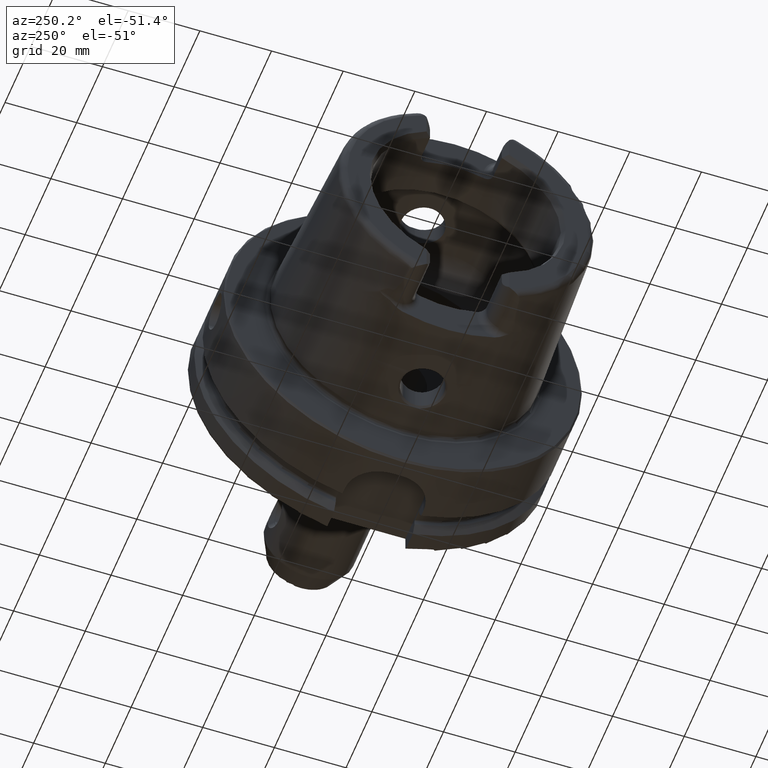
[diagram: clean part render]
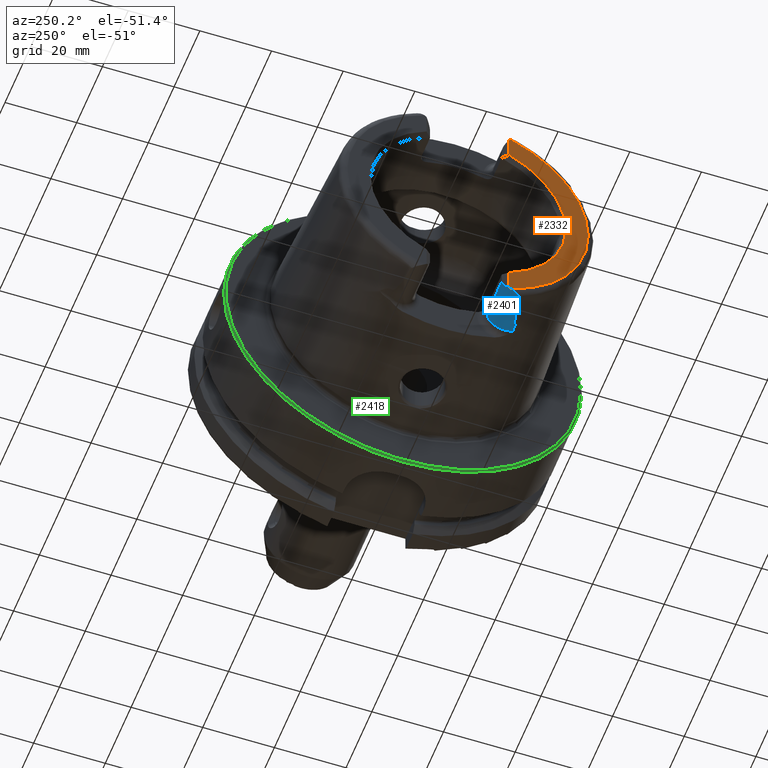
[diagram: same view with three faces highlighted in distinct colors, each labeled with its STEP entity id]
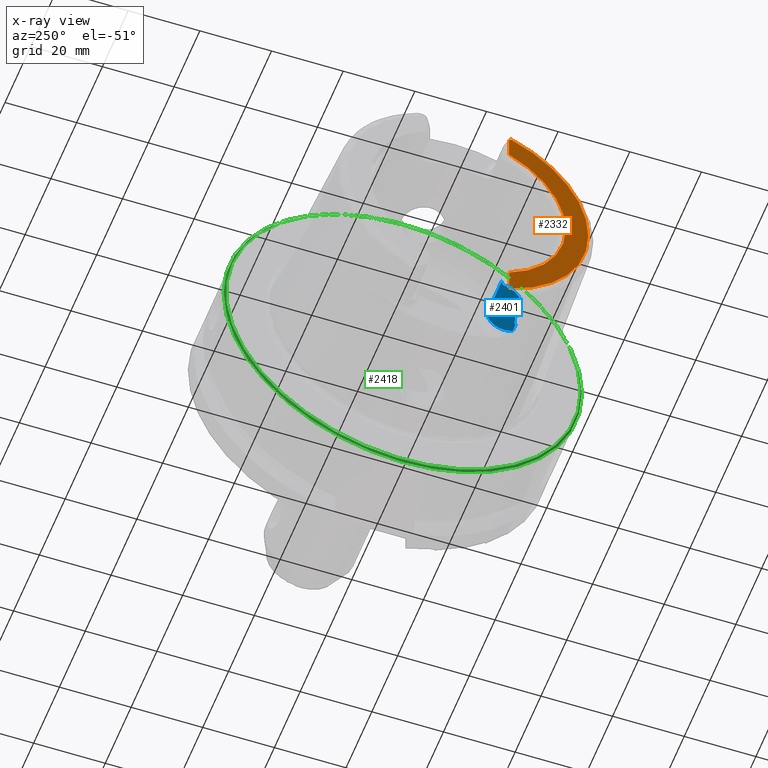
[diagram: x-ray of the same camera — body ghosted, the three highlighted faces saturated]
A machine part, auxiliary view with three faces highlighted in distinct colors.
The next image is the same camera in x-ray (body ghosted, the three faces saturated) — at least one of them is partly hidden behind the body in this view.
Their STEP definitions:

[orange] entity #2332 — the highlighted planar face has unit normal (-1, 0, 0).
#214=LINE('',#4059,#333);
#216=LINE('',#4078,#335);
#333=VECTOR('',#2960,10.);
#335=VECTOR('',#2982,10.);
#504=FACE_OUTER_BOUND('',#649,.T.);
#649=EDGE_LOOP('',(#1723,#1724,#1725,#1726,#1727,#1728));
#802=CIRCLE('',#2542,27.3660254037844);
#805=CIRCLE('',#2547,4.88);
#806=CIRCLE('',#2548,33.6001839277785);
#807=CIRCLE('',#2549,4.88);
#989=VERTEX_POINT('',#4056);
#990=VERTEX_POINT('',#4058);
#992=VERTEX_POINT('',#4064);
#995=VERTEX_POINT('',#4072);
#996=VERTEX_POINT('',#4074);
#997=VERTEX_POINT('',#4076);
#1261=EDGE_CURVE('',#989,#990,#214,.T.);
#1264=EDGE_CURVE('',#990,#992,#802,.T.);
#1268=EDGE_CURVE('',#989,#995,#805,.T.);
#1269=EDGE_CURVE('',#996,#995,#806,.T.);
#1270=EDGE_CURVE('',#996,#997,#807,.T.);
#1271=EDGE_CURVE('',#992,#997,#216,.T.);
#1723=ORIENTED_EDGE('',*,*,#1261,.F.);
#1724=ORIENTED_EDGE('',*,*,#1268,.T.);
#1725=ORIENTED_EDGE('',*,*,#1269,.F.);
#1726=ORIENTED_EDGE('',*,*,#1270,.T.);
#1727=ORIENTED_EDGE('',*,*,#1271,.F.);
#1728=ORIENTED_EDGE('',*,*,#1264,.F.);
#2264=PLANE('',#2546);
#2332=ADVANCED_FACE('',(#504),#2264,.T.);
#2542=AXIS2_PLACEMENT_3D('',#4065,#2966,#2967);
#2546=AXIS2_PLACEMENT_3D('',#4071,#2974,#2975);
#2547=AXIS2_PLACEMENT_3D('',#4073,#2976,#2977);
#2548=AXIS2_PLACEMENT_3D('',#4075,#2978,#2979);
#2549=AXIS2_PLACEMENT_3D('',#4077,#2980,#2981);
#2960=DIRECTION('',(0.,0.,1.));
#2966=DIRECTION('center_axis',(-1.,0.,0.));
#2967=DIRECTION('ref_axis',(0.,-1.,0.));
#2974=DIRECTION('center_axis',(-1.,0.,0.));
#2975=DIRECTION('ref_axis',(0.,0.,1.));
#2976=DIRECTION('center_axis',(-1.,0.,0.));
#2977=DIRECTION('ref_axis',(0.,-1.,0.));
#2978=DIRECTION('center_axis',(1.,0.,0.));
#2979=DIRECTION('ref_axis',(0.,0.,-1.));
#2980=DIRECTION('center_axis',(-1.,0.,0.));
#2981=DIRECTION('ref_axis',(0.,0.477884921181369,-0.878422450821629));
#2982=DIRECTION('',(0.,0.,1.));
#4056=CARTESIAN_POINT('',(-50.,-11.51,-30.8899431813596));
#4058=CARTESIAN_POINT('',(-50.,-11.51,-24.8277918148307));
#4059=CARTESIAN_POINT('',(-50.,-11.51,-13.685));
#4064=CARTESIAN_POINT('',(-50.,-11.51,24.8277918148307));
#4065=CARTESIAN_POINT('Origin',(-50.,0.,0.));
#4071=CARTESIAN_POINT('Origin',(-50.,33.6001839277785,0.));
#4072=CARTESIAN_POINT('',(-50.,-12.0743049948301,-31.355757348091));
#4073=CARTESIAN_POINT('Origin',(-50.,-14.89,-27.37));
#4074=CARTESIAN_POINT('',(-50.,-12.0743049948301,31.355757348091));
#4075=CARTESIAN_POINT('Origin',(-50.,0.,0.));
#4076=CARTESIAN_POINT('',(-50.,-11.51,30.8899431813596));
#4077=CARTESIAN_POINT('Origin',(-50.,-14.89,27.37));
#4078=CARTESIAN_POINT('',(-50.,-11.51,9.));

[blue] entity #2401 — the highlighted cylindrical surface (edge-blend (fillet) strip) has radius 4.88 mm, axis along (-1, 0, 0).
#90=B_SPLINE_CURVE_WITH_KNOTS('',3,(#4314,#4315,#4316,#4317,#4318,#4319,
#4320,#4321,#4322,#4323,#4324,#4325,#4326,#4327,#4328,#4329,#4330,#4331),
 .UNSPECIFIED.,.F.,.F.,(4,2,2,2,2,2,2,2,4),(0.941531918456969,1.22402920907858,
1.42803407725834,1.6320389454381,1.70619252829239,1.78034611114668,1.80087123762391,
1.81113380086252,1.82139636410113),.UNSPECIFIED.);
#134=B_SPLINE_CURVE_WITH_KNOTS('',3,(#5318,#5319,#5320,#5321,#5322,#5323,
#5324,#5325,#5326,#5327,#5328,#5329),.UNSPECIFIED.,.F.,.F.,(4,2,2,2,2,4),
(-0.330531435638092,-0.267908000768824,-0.159978118105095,-0.0786368985358016,
-0.0319888850382436,0.),.UNSPECIFIED.);
#170=CYLINDRICAL_SURFACE('',#2686,4.88);
#284=LINE('',#5295,#403);
#286=LINE('',#5334,#405);
#403=VECTOR('',#3294,10.);
#405=VECTOR('',#3326,10.);
#461=ELLIPSE('',#2539,6.90136218438071,4.88);
#573=FACE_OUTER_BOUND('',#723,.T.);
#723=EDGE_LOOP('',(#2120,#2121,#2122,#2123,#2124,#2125,#2126,#2127));
#805=CIRCLE('',#2547,4.88);
#862=CIRCLE('',#2660,4.88);
#866=CIRCLE('',#2666,4.88);
#988=VERTEX_POINT('',#4055);
#989=VERTEX_POINT('',#4056);
#995=VERTEX_POINT('',#4072);
#1017=VERTEX_POINT('',#4311);
#1018=VERTEX_POINT('',#4313);
#1121=VERTEX_POINT('',#5259);
#1122=VERTEX_POINT('',#5261);
#1126=VERTEX_POINT('',#5282);
#1260=EDGE_CURVE('',#988,#989,#461,.T.);
#1268=EDGE_CURVE('',#989,#995,#805,.T.);
#1298=EDGE_CURVE('',#1017,#1018,#90,.T.);
#1454=EDGE_CURVE('',#1121,#1122,#862,.T.);
#1461=EDGE_CURVE('',#1126,#1121,#866,.T.);
#1467=EDGE_CURVE('',#1122,#988,#284,.T.);
#1474=EDGE_CURVE('',#995,#1017,#134,.T.);
#1477=EDGE_CURVE('',#1126,#1018,#286,.T.);
#2120=ORIENTED_EDGE('',*,*,#1260,.F.);
#2121=ORIENTED_EDGE('',*,*,#1467,.F.);
#2122=ORIENTED_EDGE('',*,*,#1454,.F.);
#2123=ORIENTED_EDGE('',*,*,#1461,.F.);
#2124=ORIENTED_EDGE('',*,*,#1477,.T.);
#2125=ORIENTED_EDGE('',*,*,#1298,.F.);
#2126=ORIENTED_EDGE('',*,*,#1474,.F.);
#2127=ORIENTED_EDGE('',*,*,#1268,.F.);
#2401=ADVANCED_FACE('',(#573),#170,.T.);
#2539=AXIS2_PLACEMENT_3D('',#4057,#2958,#2959);
#2547=AXIS2_PLACEMENT_3D('',#4073,#2976,#2977);
#2660=AXIS2_PLACEMENT_3D('',#5262,#3265,#3266);
#2666=AXIS2_PLACEMENT_3D('',#5284,#3279,#3280);
#2686=AXIS2_PLACEMENT_3D('',#5333,#3324,#3325);
#2958=DIRECTION('center_axis',(-0.707106781186546,0.707106781186549,0.));
#2959=DIRECTION('ref_axis',(-0.707106781186549,-0.707106781186546,0.));
#2976=DIRECTION('center_axis',(-1.,0.,0.));
#2977=DIRECTION('ref_axis',(0.,-1.,0.));
#3265=DIRECTION('center_axis',(1.,0.,0.));
#3266=DIRECTION('ref_axis',(0.,0.510937901715381,-0.8596176246394));
#3279=DIRECTION('center_axis',(1.,0.,0.));
#3280=DIRECTION('ref_axis',(0.,-0.477884921181368,-0.878422450821629));
#3294=DIRECTION('',(-1.,0.,0.));
#3324=DIRECTION('center_axis',(-1.,0.,0.));
#3325=DIRECTION('ref_axis',(0.,-1.,0.));
#3326=DIRECTION('',(-1.,0.,0.));
#4055=CARTESIAN_POINT('',(-48.5,-10.01,-27.37));
#4056=CARTESIAN_POINT('',(-50.,-11.51,-30.8899431813596));
#4057=CARTESIAN_POINT('Origin',(-53.38,-14.89,-27.37));
#4072=CARTESIAN_POINT('',(-50.,-12.0743049948301,-31.355757348091));
#4073=CARTESIAN_POINT('Origin',(-50.,-14.89,-27.37));
#4311=CARTESIAN_POINT('',(-48.1000748840304,-15.0787152148571,-32.2463497175327));
#4313=CARTESIAN_POINT('',(-39.3086860506441,-17.2220784153651,-31.6567015600095));
#4314=CARTESIAN_POINT('Ctrl Pts',(-48.1000748840304,-15.0787152148571,-32.2463497175327));
#4315=CARTESIAN_POINT('Ctrl Pts',(-47.0815953489825,-15.2100460868363,-32.2412671998384));
#4316=CARTESIAN_POINT('Ctrl Pts',(-46.0708874643597,-15.3507400024476,-32.2307282620297));
#4317=CARTESIAN_POINT('Ctrl Pts',(-44.3638273319757,-15.6187903492069,-32.19660809961));
#4318=CARTESIAN_POINT('Ctrl Pts',(-43.6583569770469,-15.7387900082285,-32.1775602969968));
#4319=CARTESIAN_POINT('Ctrl Pts',(-42.2774968259687,-16.0065639510366,-32.1225120780024));
#4320=CARTESIAN_POINT('Ctrl Pts',(-41.6015350915672,-16.1516844838416,-32.0879931345296));
#4321=CARTESIAN_POINT('Ctrl Pts',(-40.7121103138057,-16.4018770942044,-32.0104206666339));
#4322=CARTESIAN_POINT('Ctrl Pts',(-40.4538120390228,-16.4807891402054,-31.9844991546726));
#4323=CARTESIAN_POINT('Ctrl Pts',(-39.9557031082111,-16.6668123685081,-31.9161154581445));
#4324=CARTESIAN_POINT('Ctrl Pts',(-39.7137538085319,-16.7691556019457,-31.8763882092881));
#4325=CARTESIAN_POINT('Ctrl Pts',(-39.4690330405114,-16.9505386197656,-31.7938497879436));
#4326=CARTESIAN_POINT('Ctrl Pts',(-39.41492287308,-16.9977687004959,-31.7717242618145));
#4327=CARTESIAN_POINT('Ctrl Pts',(-39.3545931085758,-17.0769444761517,-31.7326299669));
#4328=CARTESIAN_POINT('Ctrl Pts',(-39.3379356243703,-17.1047575471073,-31.7185977246152));
#4329=CARTESIAN_POINT('Ctrl Pts',(-39.314977865636,-17.1622985367361,-31.688808329826));
#4330=CARTESIAN_POINT('Ctrl Pts',(-39.3086860506439,-17.1920288621925,-31.6730493074242));
#4331=CARTESIAN_POINT('Ctrl Pts',(-39.3086860506439,-17.2220784153651,-31.6567015600096));
#5259=CARTESIAN_POINT('',(-37.,-13.4017880550143,-32.0175396939458));
#5261=CARTESIAN_POINT('',(-37.,-10.01,-27.37));
#5262=CARTESIAN_POINT('Origin',(-37.,-14.89,-27.37));
#5282=CARTESIAN_POINT('',(-37.,-17.2220784153651,-31.6567015600095));
#5284=CARTESIAN_POINT('Origin',(-37.,-14.89,-27.37));
#5295=CARTESIAN_POINT('',(-35.,-10.01,-27.37));
#5318=CARTESIAN_POINT('Ctrl Pts',(-50.,-12.0743049948301,-31.355757348091));
#5319=CARTESIAN_POINT('Ctrl Pts',(-50.,-12.2858381230511,-31.5051926299064));
#5320=CARTESIAN_POINT('Ctrl Pts',(-49.9653696826563,-12.5170331398669,-31.6430588255455));
#5321=CARTESIAN_POINT('Ctrl Pts',(-49.7810065498998,-13.1911222585011,-31.9692156023964));
#5322=CARTESIAN_POINT('Ctrl Pts',(-49.5806767805337,-13.6194685503754,-32.0969374367804));
#5323=CARTESIAN_POINT('Ctrl Pts',(-49.1716377200869,-14.2730899346346,-32.2192774131036));
#5324=CARTESIAN_POINT('Ctrl Pts',(-48.9774936618895,-14.5201969661755,-32.2395201073332));
#5325=CARTESIAN_POINT('Ctrl Pts',(-48.6675943633755,-14.8125911006811,-32.2505512851489));
#5326=CARTESIAN_POINT('Ctrl Pts',(-48.5398374959924,-14.912197389574,-32.2504544601106));
#5327=CARTESIAN_POINT('Ctrl Pts',(-48.3063803700173,-15.0305209025154,-32.2482139663407));
#5328=CARTESIAN_POINT('Ctrl Pts',(-48.2058276135777,-15.0650786147019,-32.2468774553032));
#5329=CARTESIAN_POINT('Ctrl Pts',(-48.1000748840304,-15.0787152148571,-32.2463497175327));
#5333=CARTESIAN_POINT('Origin',(-35.,-14.89,-27.37));
#5334=CARTESIAN_POINT('',(-35.,-17.2220784153651,-31.6567015600095));

[green] entity #2418 — the highlighted conical surface has half-angle 45 deg.
#293=LINE('',#5396,#412);
#412=VECTOR('',#3409,49.75);
#433=CONICAL_SURFACE('',#2724,49.75,0.785398163397447);
#590=FACE_OUTER_BOUND('',#744,.T.);
#744=EDGE_LOOP('',(#2208,#2209,#2210,#2211));
#834=CIRCLE('',#2597,50.);
#895=CIRCLE('',#2723,49.5);
#1078=VERTEX_POINT('',#4960);
#1145=VERTEX_POINT('',#5393);
#1375=EDGE_CURVE('',#1078,#1078,#834,.T.);
#1504=EDGE_CURVE('',#1145,#1145,#895,.T.);
#1505=EDGE_CURVE('',#1078,#1145,#293,.T.);
#2208=ORIENTED_EDGE('',*,*,#1375,.F.);
#2209=ORIENTED_EDGE('',*,*,#1505,.T.);
#2210=ORIENTED_EDGE('',*,*,#1504,.T.);
#2211=ORIENTED_EDGE('',*,*,#1505,.F.);
#2418=ADVANCED_FACE('',(#590),#433,.T.);
#2597=AXIS2_PLACEMENT_3D('',#4962,#3110,#3111);
#2723=AXIS2_PLACEMENT_3D('',#5394,#3405,#3406);
#2724=AXIS2_PLACEMENT_3D('',#5395,#3407,#3408);
#3110=DIRECTION('center_axis',(1.,0.,0.));
#3111=DIRECTION('ref_axis',(0.,0.,-1.));
#3405=DIRECTION('center_axis',(1.,0.,0.));
#3406=DIRECTION('ref_axis',(0.,0.,-1.));
#3407=DIRECTION('center_axis',(1.,0.,0.));
#3408=DIRECTION('ref_axis',(0.,1.,0.));
#3409=DIRECTION('',(-0.707106781186549,0.707106781186546,8.65956056235492E-17));
#4960=CARTESIAN_POINT('',(0.5,-50.,-6.12323399573677E-15));
#4962=CARTESIAN_POINT('Origin',(0.5,0.,0.));
#5393=CARTESIAN_POINT('',(1.28369537222284E-15,-49.5,-6.0620016557794E-15));
#5394=CARTESIAN_POINT('Origin',(0.,0.,0.));
#5395=CARTESIAN_POINT('Origin',(0.25,0.,0.));
#5396=CARTESIAN_POINT('',(0.25,-49.75,-6.09261782575808E-15));